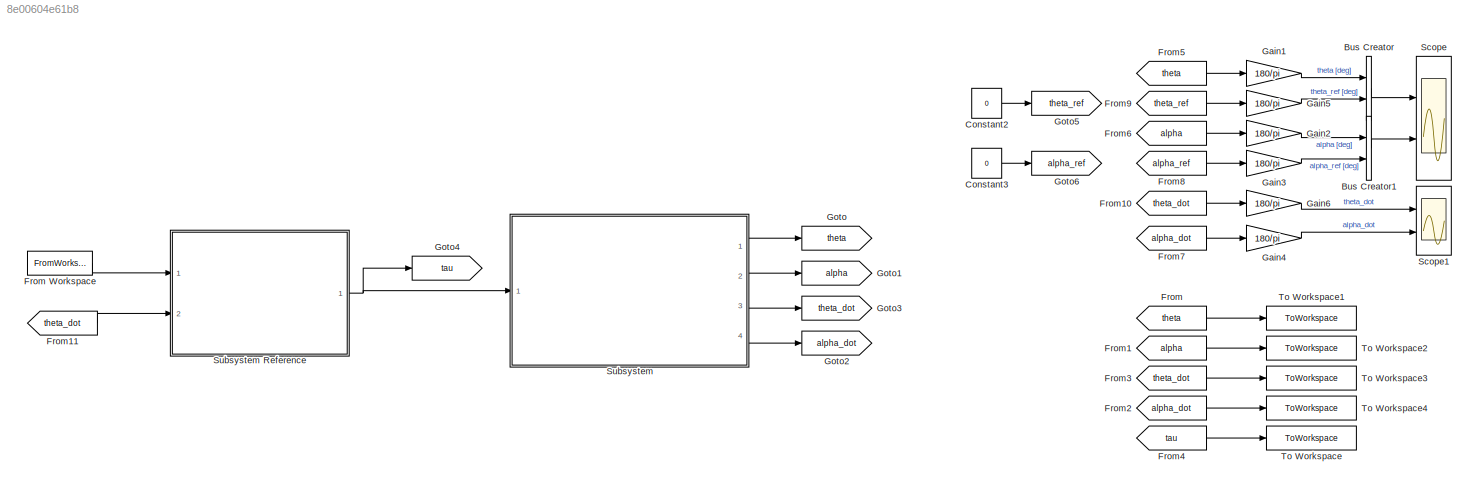
MODEL slx_8e00604e61b8
KIND model
CONFIG AbsTol = auto
CONFIG EnableMultiTasking = off
CONFIG FixedStep = dt
CONFIG MaxStep = auto
CONFIG MinStep = auto
CONFIG RelTol = 1e-3
CONFIG SampleTimeConstraint = Unconstrained
CONFIG Solver = FixedStepAuto
CONFIG SolverName = FixedStepAuto
CONFIG StartTime = 0.0
CONFIG StopTime = T_sim
BLOCK [BusCreator] Bus Creator
  DisplayOption = bar
  InheritFromInputs = on
  Inputs = 2
  Ports = [2, 1]
BLOCK [BusCreator] Bus Creator1
  DisplayOption = bar
  InheritFromInputs = on
  Inputs = 2
  Ports = [2, 1]
BLOCK [Constant] Constant2
  Value = 0
BLOCK [Constant] Constant3
  Value = 0
BLOCK [From] From
  GotoTag = theta
BLOCK [FromWorkspace] From Workspace
  VariableName = sim_in.voltage
BLOCK [From] From1
  GotoTag = alpha
BLOCK [From] From10
  GotoTag = theta_dot
BLOCK [From] From11
  GotoTag = theta_dot
BLOCK [From] From2
  GotoTag = alpha_dot
BLOCK [From] From3
  GotoTag = theta_dot
BLOCK [From] From4
  GotoTag = tau
BLOCK [From] From5
  GotoTag = theta
BLOCK [From] From6
  GotoTag = alpha
BLOCK [From] From7
  GotoTag = alpha_dot
BLOCK [From] From8
  GotoTag = alpha_ref
BLOCK [From] From9
  GotoTag = theta_ref
BLOCK [Gain] Gain1
  Gain = 180/pi
BLOCK [Gain] Gain2
  Gain = 180/pi
BLOCK [Gain] Gain3
  Gain = 180/pi
BLOCK [Gain] Gain4
  Gain = 180/pi
BLOCK [Gain] Gain5
  Gain = 180/pi
BLOCK [Gain] Gain6
  Gain = 180/pi
BLOCK [Goto] Goto
  GotoTag = theta
BLOCK [Goto] Goto1
  GotoTag = alpha
BLOCK [Goto] Goto2
  GotoTag = alpha_dot
BLOCK [Goto] Goto3
  GotoTag = theta_dot
BLOCK [Goto] Goto4
  GotoTag = tau
BLOCK [Goto] Goto5
  GotoTag = theta_ref
BLOCK [Goto] Goto6
  GotoTag = alpha_ref
BLOCK [Scope] Scope
  Floating = off
  NumInputPorts = 2
  Ports = [2]
  ScopeSpecificationString = Simulink.scopes.TimeScopeBlockCfg('CurrentConfiguration', extmgr.ConfigurationSet(extmgr.Configuration('Core','General UI',true),extmgr.Configuration('Core','Source UI',true),extmgr.Configuration('Sources','WiredSimulink',true),extmgr.Configuration('Visuals','Time Domain',true,'SerializedDisplays',{struct('MinYLimReal','-136.5894','MaxYLimReal','79.77451','YLabelReal','','MinYLimMag','0','MaxYLimM...<+1971ch>
BLOCK [Scope] Scope1
  Floating = off
  NumInputPorts = 2
  Ports = [2]
  ScopeSpecificationString = Simulink.scopes.TimeScopeBlockCfg('CurrentConfiguration', extmgr.ConfigurationSet(extmgr.Configuration('Core','General UI',true),extmgr.Configuration('Core','Source UI',true),extmgr.Configuration('Sources','WiredSimulink',true,'DataLoggingVariableName','ScopeData1'),extmgr.Configuration('Visuals','Time Domain',true,'SerializedDisplays',{struct('MinYLimReal','-574.21016','MaxYLimReal','569.66716','...<+1982ch>
BLOCK [SubSystem] Subsystem
  Ports = [1, 4]
  ReferencedSubsystem = s0311_bayesopt_simulator
  RequestExecContextInheritance = off
  al_0 = PARAMS.al_0
  al_dot_0 = PARAMS.al_dot_0
  th_0 = PARAMS.th_0
  th_dot_0 = PARAMS.th_dot_0
BLOCK [SubSystem] Subsystem Reference
  Ports = [2, 1]
  ReferencedSubsystem = s0303_motor_simulator
  RequestExecContextInheritance = off
  i_0 = 0
  omega_0 = PARAMS.th_dot_0
BLOCK [ToWorkspace] To Workspace
  FixptAsFi = on
  MaxDataPoints = inf
  Ports = [1]
  SampleTime = -1
  VariableName = tau
BLOCK [ToWorkspace] To Workspace1
  FixptAsFi = on
  MaxDataPoints = inf
  Ports = [1]
  SampleTime = -1
  VariableName = theta
BLOCK [ToWorkspace] To Workspace2
  FixptAsFi = on
  MaxDataPoints = inf
  Ports = [1]
  SampleTime = -1
  VariableName = alpha
BLOCK [ToWorkspace] To Workspace3
  FixptAsFi = on
  MaxDataPoints = inf
  Ports = [1]
  SampleTime = -1
  VariableName = theta_dot
BLOCK [ToWorkspace] To Workspace4
  FixptAsFi = on
  MaxDataPoints = inf
  Ports = [1]
  SampleTime = -1
  VariableName = alpha_dot
LINE Bus Creator1:1 -> Scope:2
LINE Bus Creator:1 -> Scope:1
LINE Constant2:1 -> Goto5:1
LINE Constant3:1 -> Goto6:1
LINE From Workspace:1 -> Subsystem Reference:1
LINE From10:1 -> Gain6:1
LINE From11:1 -> Subsystem Reference:2
LINE From1:1 -> To Workspace2:1
LINE From2:1 -> To Workspace4:1
LINE From3:1 -> To Workspace3:1
LINE From4:1 -> To Workspace:1
LINE From5:1 -> Gain1:1
LINE From6:1 -> Gain2:1
LINE From7:1 -> Gain4:1
LINE From8:1 -> Gain3:1
LINE From9:1 -> Gain5:1
LINE From:1 -> To Workspace1:1
LINE Gain1:1 -> Bus Creator:1
LINE Gain2:1 -> Bus Creator1:1
LINE Gain3:1 -> Bus Creator1:2
LINE Gain4:1 -> Scope1:2
LINE Gain5:1 -> Bus Creator:2
LINE Gain6:1 -> Scope1:1
NET Subsystem Reference:1 -> Goto4:1, Subsystem:1
LINE Subsystem:1 -> Goto:1
LINE Subsystem:2 -> Goto1:1
LINE Subsystem:3 -> Goto3:1
LINE Subsystem:4 -> Goto2:1
note: NET lines group one-source signal fan-out (src -> all destinations, sorted); 1:1 wires keep LINE
